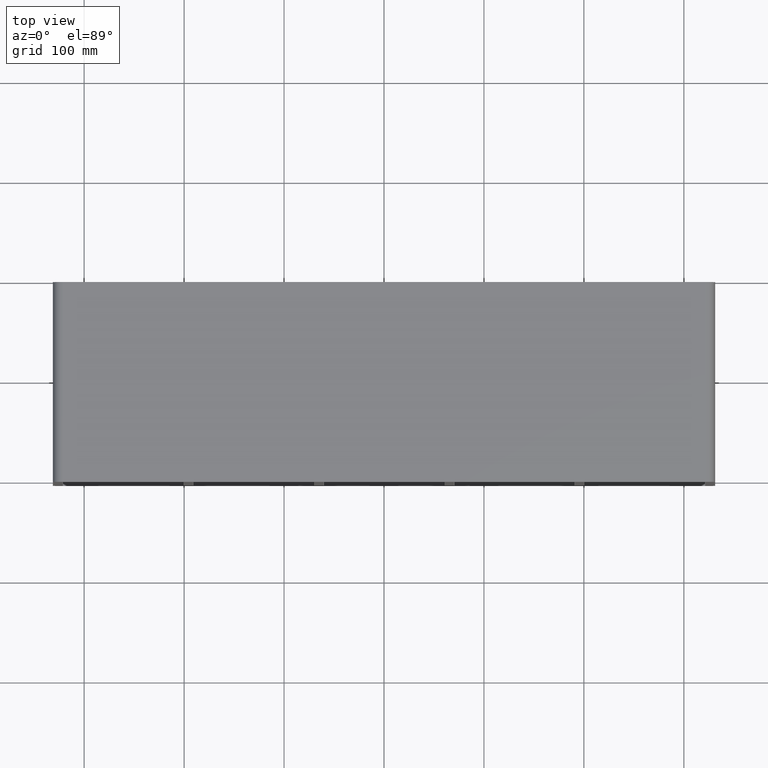
[diagram: clean part render]
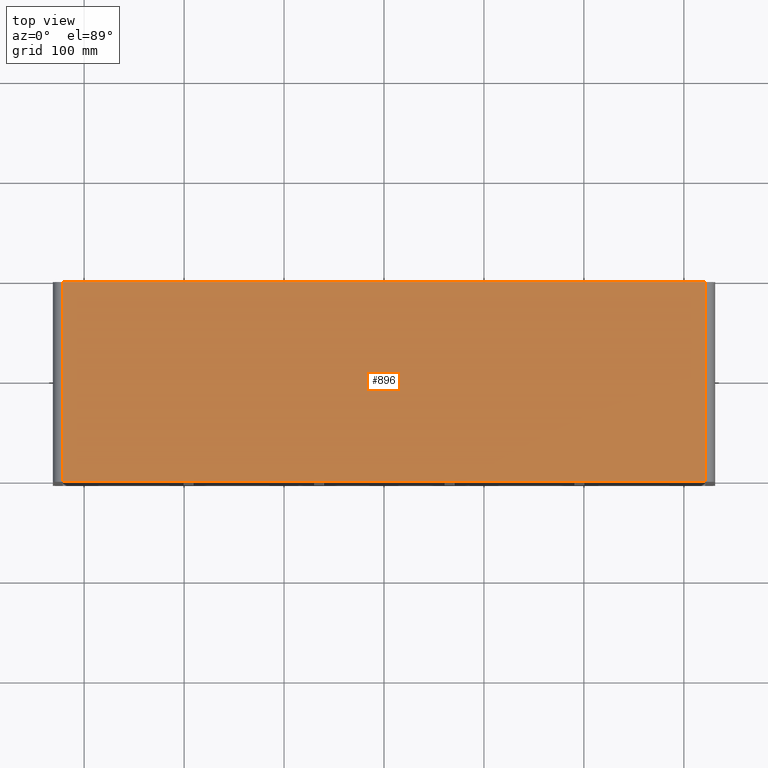
[diagram: same view with one face highlighted and labeled with its STEP entity id]
A machine part, top view. The second image highlights one B-rep face of the part: STEP entity #896.
In plain terms, the highlighted planar face has unit normal (0, 0, 1).
Its self-contained STEP definition (entity closure, byte-faithful):
#717=CARTESIAN_POINT('',(321.25,-3.0,119.00000000000003));
#718=VERTEX_POINT('',#717);
#726=CARTESIAN_POINT('',(-321.25,-3.0,119.00000000000003));
#727=VERTEX_POINT('',#726);
#728=CARTESIAN_POINT('',(321.25,-3.0,119.00000000000003));
#729=DIRECTION('',(-1.0,0.0,0.0));
#730=VECTOR('',#729,642.5);
#731=LINE('',#728,#730);
#732=EDGE_CURVE('',#718,#727,#731,.T.);
#855=CARTESIAN_POINT('',(321.25,197.0,119.00000000000003));
#856=VERTEX_POINT('',#855);
#864=CARTESIAN_POINT('',(321.25,197.0,119.00000000000003));
#865=DIRECTION('',(0.0,-1.0,0.0));
#866=VECTOR('',#865,200.0);
#867=LINE('',#864,#866);
#868=EDGE_CURVE('',#856,#718,#867,.T.);
#873=CARTESIAN_POINT('',(-331.25,0.0,119.00000000000003));
#874=DIRECTION('',(0.0,0.0,1.0));
#875=DIRECTION('',(1.0,0.0,0.0));
#876=AXIS2_PLACEMENT_3D('',#873,#874,#875);
#877=PLANE('',#876);
#878=ORIENTED_EDGE('',*,*,#868,.F.);
#879=CARTESIAN_POINT('',(-321.25,197.0,119.00000000000003));
#880=VERTEX_POINT('',#879);
#881=CARTESIAN_POINT('',(-321.25,197.0,119.00000000000003));
#882=DIRECTION('',(1.0,0.0,0.0));
#883=VECTOR('',#882,642.5);
#884=LINE('',#881,#883);
#885=EDGE_CURVE('',#880,#856,#884,.T.);
#886=ORIENTED_EDGE('',*,*,#885,.F.);
#887=CARTESIAN_POINT('',(-321.25,-3.0,119.00000000000003));
#888=DIRECTION('',(0.0,1.0,0.0));
#889=VECTOR('',#888,200.0);
#890=LINE('',#887,#889);
#891=EDGE_CURVE('',#727,#880,#890,.T.);
#892=ORIENTED_EDGE('',*,*,#891,.F.);
#893=ORIENTED_EDGE('',*,*,#732,.F.);
#894=EDGE_LOOP('',(#878,#886,#892,#893));
#895=FACE_OUTER_BOUND('',#894,.T.);
#896=ADVANCED_FACE('',(#895),#877,.T.);